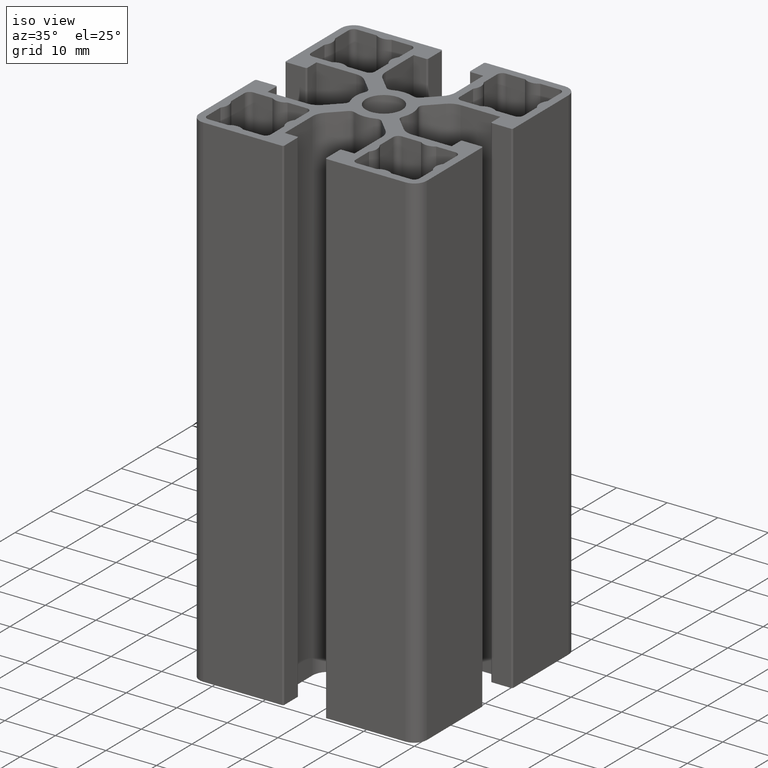
[diagram: clean part render]
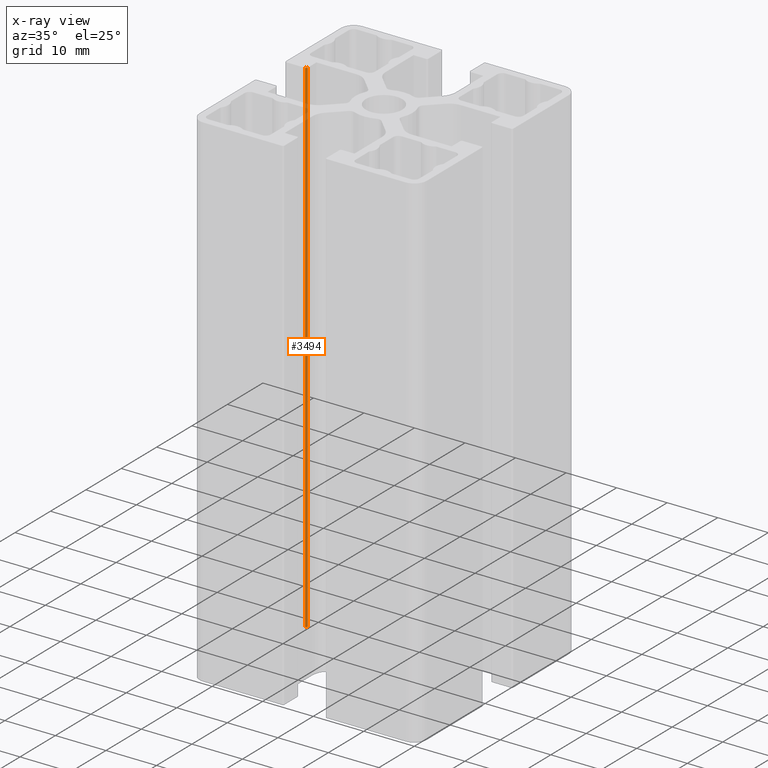
[diagram: x-ray — body ghosted, one internal face saturated and labeled with its STEP entity id]
A machine part, iso view, then the same camera in x-ray: the body is ghosted and one INTERNAL B-rep face — a face not visible from any outside direction — is saturated and labeled: STEP entity #3494.
In plain terms, the highlighted cylindrical surface (edge-blend (fillet) strip) has radius 0.3 mm, axis along (0, 0, 1).
Its self-contained STEP definition (entity closure, byte-faithful):
#180=CIRCLE('',#3830,0.300000000000001);
#181=CIRCLE('',#3831,0.300000000000001);
#313=CYLINDRICAL_SURFACE('',#3829,0.300000000000001);
#467=FACE_OUTER_BOUND('',#647,.T.);
#647=EDGE_LOOP('',(#2736,#2737,#2738,#2739));
#936=LINE('',#5805,#1256);
#937=LINE('',#5811,#1257);
#1256=VECTOR('',#4726,100.);
#1257=VECTOR('',#4733,100.);
#1608=VERTEX_POINT('',#5801);
#1609=VERTEX_POINT('',#5803);
#1610=VERTEX_POINT('',#5807);
#1611=VERTEX_POINT('',#5809);
#2084=EDGE_CURVE('',#1609,#1608,#936,.T.);
#2085=EDGE_CURVE('',#1608,#1610,#180,.T.);
#2086=EDGE_CURVE('',#1611,#1609,#181,.T.);
#2087=EDGE_CURVE('',#1611,#1610,#937,.T.);
#2736=ORIENTED_EDGE('',*,*,#2085,.F.);
#2737=ORIENTED_EDGE('',*,*,#2084,.F.);
#2738=ORIENTED_EDGE('',*,*,#2086,.F.);
#2739=ORIENTED_EDGE('',*,*,#2087,.T.);
#3494=ADVANCED_FACE('',(#467),#313,.T.);
#3829=AXIS2_PLACEMENT_3D('',#5806,#4727,#4728);
#3830=AXIS2_PLACEMENT_3D('',#5808,#4729,#4730);
#3831=AXIS2_PLACEMENT_3D('',#5810,#4731,#4732);
#4726=DIRECTION('',(0.,0.,1.));
#4727=DIRECTION('center_axis',(0.,0.,1.));
#4728=DIRECTION('ref_axis',(0.,1.,0.));
#4729=DIRECTION('center_axis',(0.,0.,1.));
#4730=DIRECTION('ref_axis',(0.,1.,0.));
#4731=DIRECTION('center_axis',(0.,0.,-1.));
#4732=DIRECTION('ref_axis',(0.,1.,0.));
#4733=DIRECTION('',(0.,0.,1.));
#5801=CARTESIAN_POINT('',(-18.5,4.15,100.));
#5803=CARTESIAN_POINT('',(-18.5,4.15,0.));
#5805=CARTESIAN_POINT('',(-18.5,4.15,0.));
#5806=CARTESIAN_POINT('Origin',(-18.5,4.45,0.));
#5807=CARTESIAN_POINT('',(-18.2,4.45,100.));
#5808=CARTESIAN_POINT('Origin',(-18.5,4.45,100.));
#5809=CARTESIAN_POINT('',(-18.2,4.45,0.));
#5810=CARTESIAN_POINT('Origin',(-18.5,4.45,0.));
#5811=CARTESIAN_POINT('',(-18.2,4.45,0.));